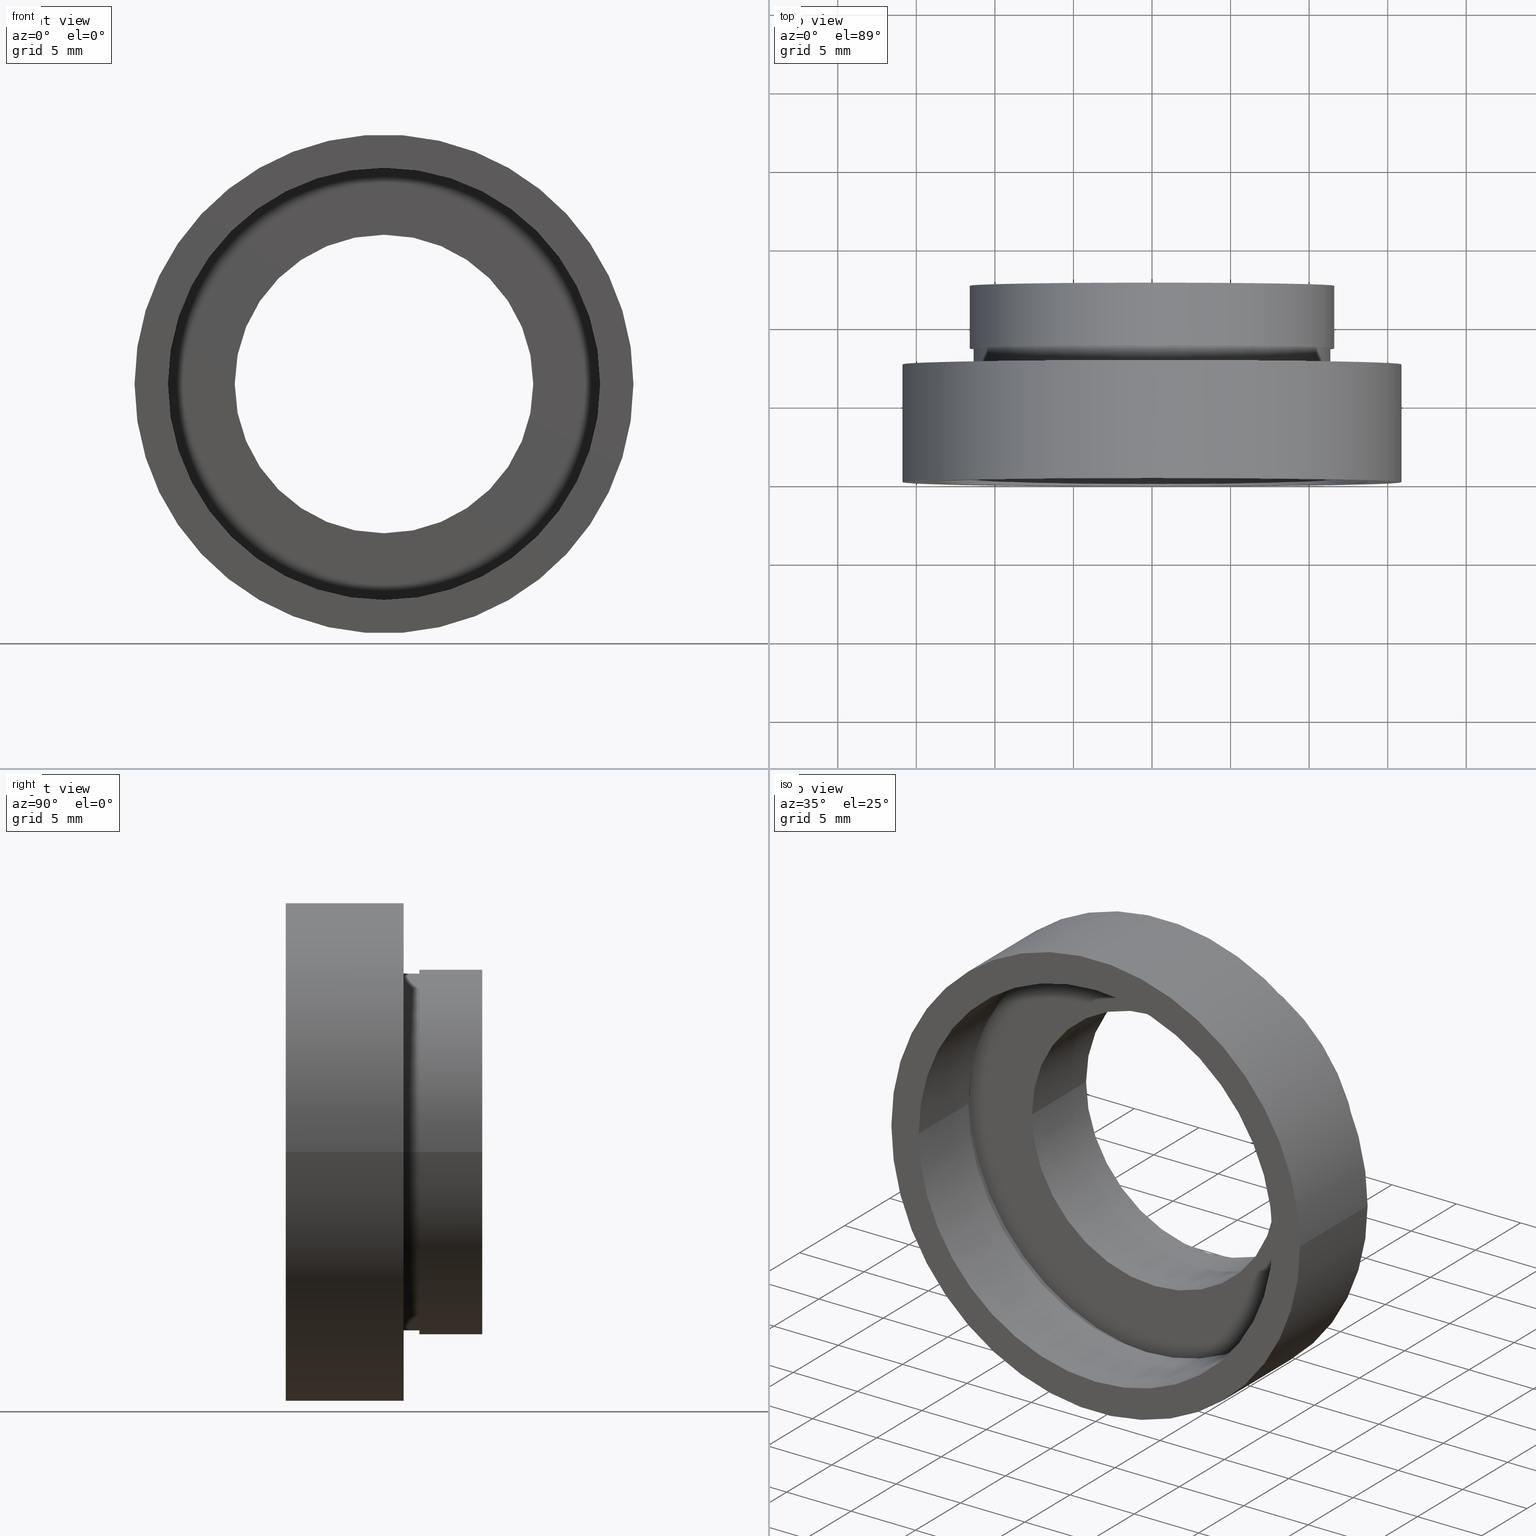
[diagram: canonical four-view strip — front | top / right | iso, engineering-drawing reading convention]
A machine part, canonical four-view strip (front | top / right | iso — engineering-drawing reading convention). The complete STEP part file that produces these views, byte-faithful:
ISO-10303-21;
HEADER;
FILE_DESCRIPTION (( 'STEP AP214' ),
    '1' );
FILE_NAME ('504070.STEP',
    '2019-10-08T06:19:54',
    ( 'user' ),
    ( '΢���й�' ),
    'SwSTEP 2.0',
    'SolidWorks 2016',
    '' );
FILE_SCHEMA (( 'AUTOMOTIVE_DESIGN' ));
ENDSEC;

DATA;
#1 = AXIS2_PLACEMENT_3D ( 'NONE', #520, #71, #206 ) ;
#2 = DIRECTION ( 'NONE',  ( -1.000000000000000000, -1.224646799147351000E-016, 0.0000000000000000000 ) ) ;
#3 = ORIENTED_EDGE ( 'NONE', *, *, #229, .T. ) ;
#4 = CARTESIAN_POINT ( 'NONE',  ( 11.60000000000000000, 8.500000000000000000, 1.420590287010929500E-015 ) ) ;
#5 =( NAMED_UNIT ( * ) PLANE_ANGLE_UNIT ( ) SI_UNIT ( $, .RADIAN. ) );
#6 = MECHANICAL_DESIGN_GEOMETRIC_PRESENTATION_REPRESENTATION (  '', ( #347 ), #112 ) ;
#7 = UNCERTAINTY_MEASURE_WITH_UNIT (LENGTH_MEASURE( 1.000000000000000100E-005 ), #18, 'distance_accuracy_value', 'NONE');
#8 = DIRECTION ( 'NONE',  ( 1.000000000000000000, 1.224646799147351000E-016, 0.0000000000000000000 ) ) ;
#9 =( NAMED_UNIT ( * ) PLANE_ANGLE_UNIT ( ) SI_UNIT ( $, .RADIAN. ) );
#10 = ORIENTED_EDGE ( 'NONE', *, *, #262, .F. ) ;
#11 = EDGE_CURVE ( 'NONE', #402, #564, #388, .T. ) ;
#12 = CARTESIAN_POINT ( 'NONE',  ( 14.35000000000000000, 5.499999999999998200, 1.757368156776451600E-015 ) ) ;
#13 = EDGE_LOOP ( 'NONE', ( #597, #489 ) ) ;
#14 = DIRECTION ( 'NONE',  ( -1.224646799147351000E-016, 1.000000000000000000, 0.0000000000000000000 ) ) ;
#15 = DIRECTION ( 'NONE',  ( -1.000000000000000000, -1.495451272393799300E-016, 0.0000000000000000000 ) ) ;
#16 =( NAMED_UNIT ( * ) SI_UNIT ( $, .STERADIAN. ) SOLID_ANGLE_UNIT ( ) );
#17 = ADVANCED_FACE ( 'NONE', ( #251, #146 ), #194, .F. ) ;
#18 =( LENGTH_UNIT ( ) NAMED_UNIT ( * ) SI_UNIT ( .MILLI., .METRE. ) );
#19 = EDGE_CURVE ( 'NONE', #556, #395, #282, .T. ) ;
#20 = ORIENTED_EDGE ( 'NONE', *, *, #74, .F. ) ;
#21 = DIRECTION ( 'NONE',  ( -1.224646799147351000E-016, 1.000000000000000000, -0.0000000000000000000 ) ) ;
#22 = VERTEX_POINT ( 'NONE', #382 ) ;
#23 = VECTOR ( 'NONE', #519, 1000.000000000000000 ) ;
#24 = AXIS2_PLACEMENT_3D ( 'NONE', #226, #452, #149 ) ;
#25 = DIRECTION ( 'NONE',  ( -1.000000000000000000, -1.224646799147351000E-016, 0.0000000000000000000 ) ) ;
#26 = DIRECTION ( 'NONE',  ( -1.224646799147351000E-016, 1.000000000000000000, -0.0000000000000000000 ) ) ;
#27 = DIRECTION ( 'NONE',  ( -1.224646799147351000E-016, 1.000000000000000000, -0.0000000000000000000 ) ) ;
#28 = PLANE ( 'NONE',  #287 ) ;
#29 = ORIENTED_EDGE ( 'NONE', *, *, #306, .F. ) ;
#30 = EDGE_LOOP ( 'NONE', ( #244, #55 ) ) ;
#31 = EDGE_LOOP ( 'NONE', ( #473, #64, #190, #536 ) ) ;
#32 = ADVANCED_FACE ( 'NONE', ( #364 ), #481, .T. ) ;
#33 = STYLED_ITEM ( 'NONE', ( #250 ), #357 ) ;
#34 = CARTESIAN_POINT ( 'NONE',  ( 0.0000000000000000000, 16.88601823708207700, 0.0000000000000000000 ) ) ;
#35 = CARTESIAN_POINT ( 'NONE',  ( 1.394385078907593200E-015, 5.499999999999996400, 0.0000000000000000000 ) ) ;
#36 = AXIS2_PLACEMENT_3D ( 'NONE', #211, #296, #222 ) ;
#37 = ADVANCED_FACE ( 'NONE', ( #344 ), #475, .F. ) ;
#38 = CARTESIAN_POINT ( 'NONE',  ( 1.149455719078122700E-015, 7.499999999999998200, 0.0000000000000000000 ) ) ;
#39 = CIRCLE ( 'NONE', #601, 11.59999999999999800 ) ;
#40 = ORIENTED_EDGE ( 'NONE', *, *, #326, .T. ) ;
#41 = CARTESIAN_POINT ( 'NONE',  ( 9.500000000000001800, 16.88601823708207700, 1.163414459189985700E-015 ) ) ;
#42 = SURFACE_STYLE_FILL_AREA ( #386 ) ;
#43 = ORIENTED_EDGE ( 'NONE', *, *, #553, .F. ) ;
#44 = CARTESIAN_POINT ( 'NONE',  ( 1.026991039163387700E-015, 8.499999999999998200, 0.0000000000000000000 ) ) ;
#45 = UNCERTAINTY_MEASURE_WITH_UNIT (LENGTH_MEASURE( 1.000000000000000100E-005 ), #263, 'distance_accuracy_value', 'NONE');
#46 = PRESENTATION_LAYER_ASSIGNMENT (  '', '', ( #209 ) ) ;
#47 = SURFACE_STYLE_FILL_AREA ( #66 ) ;
#48 = UNCERTAINTY_MEASURE_WITH_UNIT (LENGTH_MEASURE( 1.000000000000000100E-005 ), #588, 'distance_accuracy_value', 'NONE');
#49 = CARTESIAN_POINT ( 'NONE',  ( 0.0000000000000000000, 16.88601823708207700, 0.0000000000000000000 ) ) ;
#50 = DIRECTION ( 'NONE',  ( -1.224646799147351000E-016, 1.000000000000000000, -0.0000000000000000000 ) ) ;
#51 =( LENGTH_UNIT ( ) NAMED_UNIT ( * ) SI_UNIT ( .MILLI., .METRE. ) );
#52 = EDGE_CURVE ( 'NONE', #160, #458, #466, .T. ) ;
#53 = DIRECTION ( 'NONE',  ( -1.224646799147351000E-016, 1.000000000000000000, -0.0000000000000000000 ) ) ;
#54 = CIRCLE ( 'NONE', #578, 11.60000000000000000 ) ;
#55 = ORIENTED_EDGE ( 'NONE', *, *, #215, .F. ) ;
#56 = LINE ( 'NONE', #227, #179 ) ;
#57 = ORIENTED_EDGE ( 'NONE', *, *, #581, .T. ) ;
#58 = VERTEX_POINT ( 'NONE', #4 ) ;
#59 = ADVANCED_FACE ( 'NONE', ( #557 ), #543, .F. ) ;
#60 = DIRECTION ( 'NONE',  ( -1.224646799147351000E-016, 1.000000000000000000, -0.0000000000000000000 ) ) ;
#61 = EDGE_CURVE ( 'NONE', #178, #440, #56, .T. ) ;
#62 = DIRECTION ( 'NONE',  ( -1.000000000000000000, -1.092739197465705300E-016, 0.0000000000000000000 ) ) ;
#63 = DIRECTION ( 'NONE',  ( -1.224646799147351000E-016, 1.000000000000000000, -0.0000000000000000000 ) ) ;
#64 = ORIENTED_EDGE ( 'NONE', *, *, #522, .T. ) ;
#65 = EDGE_LOOP ( 'NONE', ( #549, #274, #90, #221 ) ) ;
#66 = FILL_AREA_STYLE ('',( #305 ) ) ;
#67 = CIRCLE ( 'NONE', #385, 15.87499999999999600 ) ;
#68 = SURFACE_SIDE_STYLE ('',( #275 ) ) ;
#69 = DIRECTION ( 'NONE',  ( -1.224646799147351000E-016, 1.000000000000000000, 0.0000000000000000000 ) ) ;
#70 = AXIS2_PLACEMENT_3D ( 'NONE', #38, #210, #106 ) ;
#71 = DIRECTION ( 'NONE',  ( -1.224646799147351000E-016, 1.000000000000000000, -0.0000000000000000000 ) ) ;
#72 = APPLICATION_PROTOCOL_DEFINITION ( 'draft international standard', 'automotive_design', 1998, #621 ) ;
#73 = EDGE_CURVE ( 'NONE', #343, #184, #191, .T. ) ;
#74 = EDGE_CURVE ( 'NONE', #623, #615, #67, .T. ) ;
#75 = PRESENTATION_STYLE_ASSIGNMENT (( #84 ) ) ;
#76 = ORIENTED_EDGE ( 'NONE', *, *, #609, .F. ) ;
#77 = PRESENTATION_STYLE_ASSIGNMENT (( #577 ) ) ;
#78 = LINE ( 'NONE', #133, #23 ) ;
#79 = CARTESIAN_POINT ( 'NONE',  ( 5.371323195044472300E-016, 12.49999999999999800, 0.0000000000000000000 ) ) ;
#80 = DIRECTION ( 'NONE',  ( -1.000000000000000000, -2.417733067563494800E-016, 0.0000000000000000000 ) ) ;
#81 = CARTESIAN_POINT ( 'NONE',  ( -15.87500000000000000, 16.88601823708207300, 0.0000000000000000000 ) ) ;
#82 = VECTOR ( 'NONE', #307, 1000.000000000000000 ) ;
#83 = EDGE_LOOP ( 'NONE', ( #507, #369 ) ) ;
#84 = SURFACE_STYLE_USAGE ( .BOTH. , #68 ) ;
#85 = CARTESIAN_POINT ( 'NONE',  ( 5.371323195044471300E-016, 12.50000000000000000, 0.0000000000000000000 ) ) ;
#86 = CIRCLE ( 'NONE', #95, 15.87499999999999600 ) ;
#87 = ORIENTED_EDGE ( 'NONE', *, *, #326, .F. ) ;
#88 = PRESENTATION_LAYER_ASSIGNMENT (  '', '', ( #33 ) ) ;
#89 = CIRCLE ( 'NONE', #488, 9.500000000000000000 ) ;
#90 = ORIENTED_EDGE ( 'NONE', *, *, #215, .T. ) ;
#91 = VECTOR ( 'NONE', #529, 1000.000000000000000 ) ;
#92 = CARTESIAN_POINT ( 'NONE',  ( -15.87500000000000000, 7.499999999999996400, 0.0000000000000000000 ) ) ;
#93 = CARTESIAN_POINT ( 'NONE',  ( 11.60000000000000000, 8.500000000000000000, 0.0000000000000000000 ) ) ;
#94 = EDGE_CURVE ( 'NONE', #351, #476, #78, .T. ) ;
#95 = AXIS2_PLACEMENT_3D ( 'NONE', #127, #614, #192 ) ;
#96 = CARTESIAN_POINT ( 'NONE',  ( -9.500000000000001800, 16.88601823708207700, 0.0000000000000000000 ) ) ;
#97 = ORIENTED_EDGE ( 'NONE', *, *, #183, .T. ) ;
#98 = CARTESIAN_POINT ( 'NONE',  ( 1.271920398992858000E-015, 6.499999999999997300, 0.0000000000000000000 ) ) ;
#99 = LINE ( 'NONE', #493, #91 ) ;
#100 = EDGE_LOOP ( 'NONE', ( #20, #415 ) ) ;
#101 = FACE_OUTER_BOUND ( 'NONE', #281, .T. ) ;
#102 = DIRECTION ( 'NONE',  ( -1.224646799147351000E-016, 1.000000000000000000, -0.0000000000000000000 ) ) ;
#103 = DIRECTION ( 'NONE',  ( -1.224646799147351000E-016, 1.000000000000000000, -0.0000000000000000000 ) ) ;
#104 = EDGE_CURVE ( 'NONE', #202, #201, #302, .T. ) ;
#105 = MANIFOLD_SOLID_BREP ( '��ת1', #487 ) ;
#106 = DIRECTION ( 'NONE',  ( -1.000000000000000000, -1.528390727732869900E-016, 0.0000000000000000000 ) ) ;
#107 = LINE ( 'NONE', #96, #82 ) ;
#108 = ORIENTED_EDGE ( 'NONE', *, *, #237, .T. ) ;
#109 = CIRCLE ( 'NONE', #498, 11.59999999999999800 ) ;
#110 = SURFACE_STYLE_FILL_AREA ( #339 ) ;
#111 = CARTESIAN_POINT ( 'NONE',  ( 9.500000000000001800, 12.50000000000000200, 1.163414459189985700E-015 ) ) ;
#112 =( GEOMETRIC_REPRESENTATION_CONTEXT ( 3 ) GLOBAL_UNCERTAINTY_ASSIGNED_CONTEXT ( ( #329 ) ) GLOBAL_UNIT_ASSIGNED_CONTEXT ( ( #611, #366, #437 ) ) REPRESENTATION_CONTEXT ( 'NONE', 'WORKASPACE' ) );
#113 = ADVANCED_BREP_SHAPE_REPRESENTATION ( '504070', ( #105, #293 ), #420 ) ;
#114 = DIRECTION ( 'NONE',  ( -1.000000000000000000, -1.261617073437677800E-016, 0.0000000000000000000 ) ) ;
#115 = LINE ( 'NONE', #501, #573 ) ;
#116 = ORIENTED_EDGE ( 'NONE', *, *, #609, .T. ) ;
#117 = ORIENTED_EDGE ( 'NONE', *, *, #142, .F. ) ;
#118 = COLOUR_RGB ( '',1.000000000000000000, 1.000000000000000000, 1.000000000000000000 ) ;
#119 = EDGE_CURVE ( 'NONE', #266, #595, #608, .T. ) ;
#120 = DIRECTION ( 'NONE',  ( -1.000000000000000000, -1.495451272393799300E-016, 0.0000000000000000000 ) ) ;
#121 = CARTESIAN_POINT ( 'NONE',  ( 0.0000000000000000000, 16.88601823708207700, 0.0000000000000000000 ) ) ;
#122 = FACE_BOUND ( 'NONE', #423, .T. ) ;
#123 = LINE ( 'NONE', #505, #240 ) ;
#124 = ADVANCED_FACE ( 'NONE', ( #526, #432 ), #28, .F. ) ;
#125 = CYLINDRICAL_SURFACE ( 'NONE', #464, 14.34999999999999800 ) ;
#126 = CARTESIAN_POINT ( 'NONE',  ( 1.026991039163387700E-015, 8.499999999999998200, 0.0000000000000000000 ) ) ;
#127 = CARTESIAN_POINT ( 'NONE',  ( 2.067940818438636500E-015, -3.469446951953614200E-015, 0.0000000000000000000 ) ) ;
#128 = EDGE_CURVE ( 'NONE', #22, #564, #417, .T. ) ;
#129 = FILL_AREA_STYLE ('',( #583 ) ) ;
#130 = ORIENTED_EDGE ( 'NONE', *, *, #559, .T. ) ;
#131 = COLOUR_RGB ( '',1.000000000000000000, 1.000000000000000000, 1.000000000000000000 ) ;
#132 = FACE_OUTER_BOUND ( 'NONE', #303, .T. ) ;
#133 = CARTESIAN_POINT ( 'NONE',  ( -11.60000000000000000, 16.88601823708207700, 0.0000000000000000000 ) ) ;
#134 = DIRECTION ( 'NONE',  ( -1.000000000000000000, -9.130123557772668300E-017, 0.0000000000000000000 ) ) ;
#135 = CARTESIAN_POINT ( 'NONE',  ( 13.75000000000000400, 5.499999999999998200, 1.683889348827611000E-015 ) ) ;
#136 = CYLINDRICAL_SURFACE ( 'NONE', #532, 15.87500000000000000 ) ;
#137 = EDGE_LOOP ( 'NONE', ( #161, #396, #457, #207 ) ) ;
#138 = SURFACE_STYLE_USAGE ( .BOTH. , #212 ) ;
#139 = ORIENTED_EDGE ( 'NONE', *, *, #19, .T. ) ;
#140 = FACE_BOUND ( 'NONE', #13, .T. ) ;
#141 = DIRECTION ( 'NONE',  ( -1.000000000000000000, -1.208866533781747400E-016, 0.0000000000000000000 ) ) ;
#142 = EDGE_CURVE ( 'NONE', #228, #153, #427, .T. ) ;
#143 = DIRECTION ( 'NONE',  ( -1.000000000000000000, -2.417733067563494800E-016, 0.0000000000000000000 ) ) ;
#144 = ORIENTED_EDGE ( 'NONE', *, *, #372, .T. ) ;
#145 = ORIENTED_EDGE ( 'NONE', *, *, #460, .F. ) ;
#146 = FACE_BOUND ( 'NONE', #304, .T. ) ;
#147 = FACE_OUTER_BOUND ( 'NONE', #267, .T. ) ;
#148 = CARTESIAN_POINT ( 'NONE',  ( 1.394385078907593200E-015, 5.499999999999996400, 0.0000000000000000000 ) ) ;
#149 = DIRECTION ( 'NONE',  ( -1.000000000000000000, -1.208866533781747400E-016, 0.0000000000000000000 ) ) ;
#150 = FACE_BOUND ( 'NONE', #534, .T. ) ;
#151 = ORIENTED_EDGE ( 'NONE', *, *, #11, .F. ) ;
#152 = PRODUCT_DEFINITION_CONTEXT ( 'detailed design', #621, 'design' ) ;
#153 = VERTEX_POINT ( 'NONE', #613 ) ;
#154 = LINE ( 'NONE', #454, #315 ) ;
#155 = DIRECTION ( 'NONE',  ( -1.224646799147351000E-016, 1.000000000000000000, -0.0000000000000000000 ) ) ;
#156 = DIRECTION ( 'NONE',  ( -1.000000000000000000, -1.208866533781747400E-016, 0.0000000000000000000 ) ) ;
#157 = EDGE_CURVE ( 'NONE', #202, #266, #401, .T. ) ;
#158 = ORIENTED_EDGE ( 'NONE', *, *, #581, .F. ) ;
#159 = VECTOR ( 'NONE', #279, 1000.000000000000000 ) ;
#160 = VERTEX_POINT ( 'NONE', #361 ) ;
#161 = ORIENTED_EDGE ( 'NONE', *, *, #61, .F. ) ;
#162 = CARTESIAN_POINT ( 'NONE',  ( -11.34999999999999800, 8.499999999999996400, 0.0000000000000000000 ) ) ;
#163 = CYLINDRICAL_SURFACE ( 'NONE', #617, 9.500000000000001800 ) ;
#164 = AXIS2_PLACEMENT_3D ( 'NONE', #370, #170, #143 ) ;
#165 =( LENGTH_UNIT ( ) NAMED_UNIT ( * ) SI_UNIT ( .MILLI., .METRE. ) );
#166 = DIRECTION ( 'NONE',  ( -1.000000000000000000, -1.224646799147351000E-016, 0.0000000000000000000 ) ) ;
#167 = VERTEX_POINT ( 'NONE', #312 ) ;
#168 = DIRECTION ( 'NONE',  ( -1.224646799147351000E-016, 1.000000000000000000, -0.0000000000000000000 ) ) ;
#169 = ADVANCED_FACE ( 'NONE', ( #101 ), #327, .F. ) ;
#170 = DIRECTION ( 'NONE',  ( -1.224646799147351000E-016, 1.000000000000000000, -0.0000000000000000000 ) ) ;
#171 = ADVANCED_FACE ( 'NONE', ( #389 ), #311, .T. ) ;
#172 =( NAMED_UNIT ( * ) SI_UNIT ( $, .STERADIAN. ) SOLID_ANGLE_UNIT ( ) );
#173 = MECHANICAL_DESIGN_GEOMETRIC_PRESENTATION_REPRESENTATION (  '', ( #373 ), #203 ) ;
#174 = PRODUCT ( '504070', '504070', '', ( #292 ) ) ;
#175 = CIRCLE ( 'NONE', #612, 13.75000000000000200 ) ;
#176 = CARTESIAN_POINT ( 'NONE',  ( 5.371323195044472300E-016, 12.49999999999999800, 0.0000000000000000000 ) ) ;
#177 = CIRCLE ( 'NONE', #447, 9.500000000000000000 ) ;
#178 = VERTEX_POINT ( 'NONE', #12 ) ;
#179 = VECTOR ( 'NONE', #358, 1000.000000000000000 ) ;
#180 = CIRCLE ( 'NONE', #494, 11.35000000000000000 ) ;
#181 = DIRECTION ( 'NONE',  ( 1.224646799147351000E-016, -1.000000000000000000, 0.0000000000000000000 ) ) ;
#182 = DIRECTION ( 'NONE',  ( -1.000000000000000000, -1.826024711554533400E-016, 0.0000000000000000000 ) ) ;
#183 = EDGE_CURVE ( 'NONE', #564, #22, #342, .T. ) ;
#184 = VERTEX_POINT ( 'NONE', #92 ) ;
#185 = FACE_OUTER_BOUND ( 'NONE', #200, .T. ) ;
#186 = CIRCLE ( 'NONE', #605, 14.34999999999999800 ) ;
#187 = DIRECTION ( 'NONE',  ( -1.224646799147351000E-016, 1.000000000000000000, -0.0000000000000000000 ) ) ;
#188 = FACE_BOUND ( 'NONE', #425, .T. ) ;
#189 = CARTESIAN_POINT ( 'NONE',  ( -14.34999999999999600, 5.499999999999994700, 0.0000000000000000000 ) ) ;
#190 = ORIENTED_EDGE ( 'NONE', *, *, #119, .F. ) ;
#191 = CIRCLE ( 'NONE', #591, 15.87500000000000000 ) ;
#192 = DIRECTION ( 'NONE',  ( -1.000000000000000000, -1.224646799147350700E-016, 0.0000000000000000000 ) ) ;
#193 = EDGE_CURVE ( 'NONE', #178, #228, #548, .T. ) ;
#194 = PLANE ( 'NONE',  #238 ) ;
#195 = LINE ( 'NONE', #504, #159 ) ;
#196 = PRESENTATION_STYLE_ASSIGNMENT (( #248 ) ) ;
#197 = CARTESIAN_POINT ( 'NONE',  ( 9.500000000000001800, 6.499999999999999100, 0.0000000000000000000 ) ) ;
#198 = DIRECTION ( 'NONE',  ( 0.0000000000000000000, 0.0000000000000000000, 1.000000000000000000 ) ) ;
#199 = COLOUR_RGB ( '',1.000000000000000000, 1.000000000000000000, 1.000000000000000000 ) ;
#200 = EDGE_LOOP ( 'NONE', ( #533, #424, #517, #76 ) ) ;
#201 = VERTEX_POINT ( 'NONE', #325 ) ;
#202 = VERTEX_POINT ( 'NONE', #261 ) ;
#203 =( GEOMETRIC_REPRESENTATION_CONTEXT ( 3 ) GLOBAL_UNCERTAINTY_ASSIGNED_CONTEXT ( ( #243 ) ) GLOBAL_UNIT_ASSIGNED_CONTEXT ( ( #537, #294, #509 ) ) REPRESENTATION_CONTEXT ( 'NONE', 'WORKASPACE' ) );
#204 = CARTESIAN_POINT ( 'NONE',  ( 2.067940818438636100E-015, 0.0000000000000000000, 0.0000000000000000000 ) ) ;
#205 = CARTESIAN_POINT ( 'NONE',  ( 1.394385078907593200E-015, 5.499999999999996400, 0.0000000000000000000 ) ) ;
#206 = DIRECTION ( 'NONE',  ( -1.000000000000000000, 0.0000000000000000000, 0.0000000000000000000 ) ) ;
#207 = ORIENTED_EDGE ( 'NONE', *, *, #477, .T. ) ;
#208 = SURFACE_STYLE_USAGE ( .BOTH. , #362 ) ;
#209 = STYLED_ITEM ( 'NONE', ( #518 ), #32 ) ;
#210 = DIRECTION ( 'NONE',  ( -1.224646799147351000E-016, 1.000000000000000000, -0.0000000000000000000 ) ) ;
#211 = CARTESIAN_POINT ( 'NONE',  ( 0.0000000000000000000, 16.88601823708207700, 0.0000000000000000000 ) ) ;
#212 = SURFACE_SIDE_STYLE ('',( #467 ) ) ;
#213 = CIRCLE ( 'NONE', #264, 13.75000000000000200 ) ;
#214 = SURFACE_SIDE_STYLE ('',( #576 ) ) ;
#215 = EDGE_CURVE ( 'NONE', #395, #556, #213, .T. ) ;
#216 = DIRECTION ( 'NONE',  ( -1.000000000000000000, -1.224646799147350700E-016, 0.0000000000000000000 ) ) ;
#217 = CARTESIAN_POINT ( 'NONE',  ( 0.0000000000000000000, 16.88601823708207700, 0.0000000000000000000 ) ) ;
#218 = MECHANICAL_DESIGN_GEOMETRIC_PRESENTATION_REPRESENTATION (  '', ( #246 ), #316 ) ;
#219 = CARTESIAN_POINT ( 'NONE',  ( -11.35000000000000000, 16.88601823708207700, 0.0000000000000000000 ) ) ;
#220 = DIRECTION ( 'NONE',  ( -1.224646799147351000E-016, 1.000000000000000000, -0.0000000000000000000 ) ) ;
#221 = ORIENTED_EDGE ( 'NONE', *, *, #409, .F. ) ;
#222 = DIRECTION ( 'NONE',  ( -1.000000000000000000, 0.0000000000000000000, 0.0000000000000000000 ) ) ;
#223 = EDGE_CURVE ( 'NONE', #228, #178, #335, .T. ) ;
#224 = ADVANCED_FACE ( 'NONE', ( #330 ), #253, .T. ) ;
#225 = CARTESIAN_POINT ( 'NONE',  ( 5.371323195044471300E-016, 12.50000000000000000, 0.0000000000000000000 ) ) ;
#226 = CARTESIAN_POINT ( 'NONE',  ( 1.394385078907593200E-015, 5.499999999999996400, 0.0000000000000000000 ) ) ;
#227 = CARTESIAN_POINT ( 'NONE',  ( 14.34999999999999800, 16.88601823708208000, 1.757368156776451600E-015 ) ) ;
#228 = VERTEX_POINT ( 'NONE', #189 ) ;
#229 = EDGE_CURVE ( 'NONE', #615, #623, #86, .T. ) ;
#230 = AXIS2_PLACEMENT_3D ( 'NONE', #148, #308, #114 ) ;
#231 = DIRECTION ( 'NONE',  ( 1.000000000000000000, 0.0000000000000000000, 0.0000000000000000000 ) ) ;
#232 = DIRECTION ( 'NONE',  ( 1.000000000000000000, 1.224646799147351000E-016, 0.0000000000000000000 ) ) ;
#233 = ADVANCED_FACE ( 'NONE', ( #283 ), #540, .F. ) ;
#234 = ORIENTED_EDGE ( 'NONE', *, *, #128, .F. ) ;
#235 = COLOUR_RGB ( '',1.000000000000000000, 1.000000000000000000, 1.000000000000000000 ) ;
#236 = DIRECTION ( 'NONE',  ( -1.000000000000000000, -2.185478394931410600E-016, 0.0000000000000000000 ) ) ;
#237 = EDGE_CURVE ( 'NONE', #351, #58, #39, .T. ) ;
#238 = AXIS2_PLACEMENT_3D ( 'NONE', #93, #69, #408 ) ;
#239 = CARTESIAN_POINT ( 'NONE',  ( -15.87499999999999300, -5.413573745600033100E-015, 0.0000000000000000000 ) ) ;
#240 = VECTOR ( 'NONE', #270, 1000.000000000000000 ) ;
#241 = EDGE_LOOP ( 'NONE', ( #365, #297 ) ) ;
#242 = VECTOR ( 'NONE', #624, 1000.000000000000000 ) ;
#243 = UNCERTAINTY_MEASURE_WITH_UNIT (LENGTH_MEASURE( 1.000000000000000100E-005 ), #537, 'distance_accuracy_value', 'NONE');
#244 = ORIENTED_EDGE ( 'NONE', *, *, #19, .F. ) ;
#245 = EDGE_LOOP ( 'NONE', ( #438, #116 ) ) ;
#246 = STYLED_ITEM ( 'NONE', ( #442 ), #37 ) ;
#247 = FACE_OUTER_BOUND ( 'NONE', #321, .T. ) ;
#248 = SURFACE_STYLE_USAGE ( .BOTH. , #579 ) ;
#249 = FILL_AREA_STYLE_COLOUR ( '', #336 ) ;
#250 = PRESENTATION_STYLE_ASSIGNMENT (( #461 ) ) ;
#251 = FACE_OUTER_BOUND ( 'NONE', #241, .T. ) ;
#252 = LINE ( 'NONE', #81, #242 ) ;
#253 = CYLINDRICAL_SURFACE ( 'NONE', #510, 11.35000000000000000 ) ;
#254 = FILL_AREA_STYLE ('',( #309 ) ) ;
#255 = DIRECTION ( 'NONE',  ( 1.224646799147351000E-016, -1.000000000000000000, 0.0000000000000000000 ) ) ;
#256 = AXIS2_PLACEMENT_3D ( 'NONE', #34, #286, #531 ) ;
#257 = FACE_OUTER_BOUND ( 'NONE', #100, .T. ) ;
#258 = PRODUCT_RELATED_PRODUCT_CATEGORY ( 'part', '', ( #174 ) ) ;
#259 = DIRECTION ( 'NONE',  ( -1.000000000000000000, -1.224646799147351000E-016, 0.0000000000000000000 ) ) ;
#260 = CARTESIAN_POINT ( 'NONE',  ( 13.75000000000000400, 5.499999999999998200, 0.0000000000000000000 ) ) ;
#261 = CARTESIAN_POINT ( 'NONE',  ( -11.34999999999999800, 7.499999999999996400, 0.0000000000000000000 ) ) ;
#262 = EDGE_CURVE ( 'NONE', #184, #343, #276, .T. ) ;
#263 =( LENGTH_UNIT ( ) NAMED_UNIT ( * ) SI_UNIT ( .MILLI., .METRE. ) );
#264 = AXIS2_PLACEMENT_3D ( 'NONE', #35, #448, #555 ) ;
#265 = DIRECTION ( 'NONE',  ( -1.224646799147351000E-016, 1.000000000000000000, -0.0000000000000000000 ) ) ;
#266 = VERTEX_POINT ( 'NONE', #162 ) ;
#267 = EDGE_LOOP ( 'NONE', ( #43, #3, #289, #622 ) ) ;
#268 =( LENGTH_UNIT ( ) NAMED_UNIT ( * ) SI_UNIT ( .MILLI., .METRE. ) );
#269 = COLOUR_RGB ( '',1.000000000000000000, 1.000000000000000000, 1.000000000000000000 ) ;
#270 = DIRECTION ( 'NONE',  ( -1.224646799147351000E-016, 1.000000000000000000, -0.0000000000000000000 ) ) ;
#271 = DIRECTION ( 'NONE',  ( -1.224646799147351000E-016, 1.000000000000000000, -0.0000000000000000000 ) ) ;
#272 = PRESENTATION_STYLE_ASSIGNMENT (( #138 ) ) ;
#273 = CIRCLE ( 'NONE', #70, 11.35000000000000000 ) ;
#274 = ORIENTED_EDGE ( 'NONE', *, *, #384, .T. ) ;
#275 = SURFACE_STYLE_FILL_AREA ( #129 ) ;
#276 = CIRCLE ( 'NONE', #568, 15.87500000000000000 ) ;
#277 = DIRECTION ( 'NONE',  ( -1.224646799147351000E-016, 1.000000000000000000, -0.0000000000000000000 ) ) ;
#278 = AXIS2_PLACEMENT_3D ( 'NONE', #85, #50, #616 ) ;
#279 = DIRECTION ( 'NONE',  ( -1.224646799147351000E-016, 1.000000000000000000, -0.0000000000000000000 ) ) ;
#280 = DIRECTION ( 'NONE',  ( -1.000000000000000000, -9.130123557772668300E-017, 0.0000000000000000000 ) ) ;
#281 = EDGE_LOOP ( 'NONE', ( #542, #371, #575, #139 ) ) ;
#282 = CIRCLE ( 'NONE', #230, 13.75000000000000200 ) ;
#283 = FACE_OUTER_BOUND ( 'NONE', #433, .T. ) ;
#284 = CARTESIAN_POINT ( 'NONE',  ( 0.0000000000000000000, 16.88601823708207700, 0.0000000000000000000 ) ) ;
#285 = PRODUCT_DEFINITION ( 'δ֪', '', #333, #152 ) ;
#286 = DIRECTION ( 'NONE',  ( -1.224646799147351000E-016, 1.000000000000000000, -0.0000000000000000000 ) ) ;
#287 = AXIS2_PLACEMENT_3D ( 'NONE', #260, #181, #8 ) ;
#288 = FACE_OUTER_BOUND ( 'NONE', #525, .T. ) ;
#289 = ORIENTED_EDGE ( 'NONE', *, *, #338, .T. ) ;
#290 = EDGE_LOOP ( 'NONE', ( #607, #331, #10, #482 ) ) ;
#291 = CARTESIAN_POINT ( 'NONE',  ( -11.59999999999999600, 8.499999999999996400, 0.0000000000000000000 ) ) ;
#292 = PRODUCT_CONTEXT ( 'NONE', #446, 'mechanical' ) ;
#293 = AXIS2_PLACEMENT_3D ( 'NONE', #398, #198, #231 ) ;
#294 =( NAMED_UNIT ( * ) PLANE_ANGLE_UNIT ( ) SI_UNIT ( $, .RADIAN. ) );
#295 = ADVANCED_FACE ( 'NONE', ( #257, #140 ), #478, .F. ) ;
#296 = DIRECTION ( 'NONE',  ( -1.224646799147351000E-016, 1.000000000000000000, -0.0000000000000000000 ) ) ;
#297 = ORIENTED_EDGE ( 'NONE', *, *, #546, .F. ) ;
#298 = MECHANICAL_DESIGN_GEOMETRIC_PRESENTATION_REPRESENTATION (  '', ( #571 ), #324 ) ;
#299 = DIRECTION ( 'NONE',  ( -1.000000000000000000, 0.0000000000000000000, 0.0000000000000000000 ) ) ;
#300 = FACE_OUTER_BOUND ( 'NONE', #378, .T. ) ;
#301 = DIRECTION ( 'NONE',  ( -1.224646799147351000E-016, 1.000000000000000000, -0.0000000000000000000 ) ) ;
#302 = CIRCLE ( 'NONE', #491, 11.35000000000000000 ) ;
#303 = EDGE_LOOP ( 'NONE', ( #387, #404 ) ) ;
#304 = EDGE_LOOP ( 'NONE', ( #354, #516 ) ) ;
#305 = FILL_AREA_STYLE_COLOUR ( '', #269 ) ;
#306 = EDGE_CURVE ( 'NONE', #402, #167, #177, .T. ) ;
#307 = DIRECTION ( 'NONE',  ( -1.224646799147351000E-016, 1.000000000000000000, -0.0000000000000000000 ) ) ;
#308 = DIRECTION ( 'NONE',  ( -1.224646799147351000E-016, 1.000000000000000000, -0.0000000000000000000 ) ) ;
#309 = FILL_AREA_STYLE_COLOUR ( '', #319 ) ;
#310 = DIRECTION ( 'NONE',  ( -1.000000000000000000, -1.528390727732869900E-016, 0.0000000000000000000 ) ) ;
#311 = CYLINDRICAL_SURFACE ( 'NONE', #435, 15.87500000000000000 ) ;
#312 = CARTESIAN_POINT ( 'NONE',  ( -9.499999999999998200, 6.499999999999996400, 0.0000000000000000000 ) ) ;
#313 = CARTESIAN_POINT ( 'NONE',  ( -14.34999999999999800, 16.88601823708207300, 0.0000000000000000000 ) ) ;
#314 = DIRECTION ( 'NONE',  ( -1.224646799147351000E-016, 1.000000000000000000, -0.0000000000000000000 ) ) ;
#315 = VECTOR ( 'NONE', #265, 1000.000000000000000 ) ;
#316 =( GEOMETRIC_REPRESENTATION_CONTEXT ( 3 ) GLOBAL_UNCERTAINTY_ASSIGNED_CONTEXT ( ( #45 ) ) GLOBAL_UNIT_ASSIGNED_CONTEXT ( ( #263, #593, #572 ) ) REPRESENTATION_CONTEXT ( 'NONE', 'WORKASPACE' ) );
#317 = DIRECTION ( 'NONE',  ( -1.224646799147351000E-016, 1.000000000000000000, -0.0000000000000000000 ) ) ;
#318 =( GEOMETRIC_REPRESENTATION_CONTEXT ( 3 ) GLOBAL_UNCERTAINTY_ASSIGNED_CONTEXT ( ( #544 ) ) GLOBAL_UNIT_ASSIGNED_CONTEXT ( ( #499, #566, #484 ) ) REPRESENTATION_CONTEXT ( 'NONE', 'WORKASPACE' ) );
#319 = COLOUR_RGB ( '',1.000000000000000000, 1.000000000000000000, 1.000000000000000000 ) ;
#320 = EDGE_LOOP ( 'NONE', ( #380, #363 ) ) ;
#321 = EDGE_LOOP ( 'NONE', ( #29, #502, #97, #574 ) ) ;
#322 = FILL_AREA_STYLE_COLOUR ( '', #118 ) ;
#323 = EDGE_CURVE ( 'NONE', #458, #160, #175, .T. ) ;
#324 =( GEOMETRIC_REPRESENTATION_CONTEXT ( 3 ) GLOBAL_UNCERTAINTY_ASSIGNED_CONTEXT ( ( #7 ) ) GLOBAL_UNIT_ASSIGNED_CONTEXT ( ( #18, #524, #428 ) ) REPRESENTATION_CONTEXT ( 'NONE', 'WORKASPACE' ) );
#325 = CARTESIAN_POINT ( 'NONE',  ( 11.35000000000000100, 7.500000000000000000, 1.389974117032245900E-015 ) ) ;
#326 = EDGE_CURVE ( 'NONE', #201, #202, #273, .T. ) ;
#327 = CYLINDRICAL_SURFACE ( 'NONE', #471, 13.75000000000000200 ) ;
#328 = ORIENTED_EDGE ( 'NONE', *, *, #157, .T. ) ;
#329 = UNCERTAINTY_MEASURE_WITH_UNIT (LENGTH_MEASURE( 1.000000000000000100E-005 ), #611, 'distance_accuracy_value', 'NONE');
#330 = FACE_OUTER_BOUND ( 'NONE', #31, .T. ) ;
#331 = ORIENTED_EDGE ( 'NONE', *, *, #553, .T. ) ;
#332 = PRESENTATION_STYLE_ASSIGNMENT (( #348 ) ) ;
#333 = PRODUCT_DEFINITION_FORMATION_WITH_SPECIFIED_SOURCE ( '�κ�', '', #174, .NOT_KNOWN. ) ;
#334 = PRESENTATION_LAYER_ASSIGNMENT (  '', '', ( #373 ) ) ;
#335 = CIRCLE ( 'NONE', #24, 14.34999999999999800 ) ;
#336 = COLOUR_RGB ( '',1.000000000000000000, 1.000000000000000000, 1.000000000000000000 ) ;
#337 = CARTESIAN_POINT ( 'NONE',  ( 0.0000000000000000000, 16.88601823708207700, 0.0000000000000000000 ) ) ;
#338 = EDGE_CURVE ( 'NONE', #623, #184, #252, .T. ) ;
#339 = FILL_AREA_STYLE ('',( #453 ) ) ;
#340 = DIRECTION ( 'NONE',  ( -1.224646799147351000E-016, 1.000000000000000000, -0.0000000000000000000 ) ) ;
#341 = PRESENTATION_LAYER_ASSIGNMENT (  '', '', ( #353 ) ) ;
#342 = CIRCLE ( 'NONE', #619, 9.500000000000001800 ) ;
#343 = VERTEX_POINT ( 'NONE', #562 ) ;
#344 = FACE_OUTER_BOUND ( 'NONE', #65, .T. ) ;
#345 = ORIENTED_EDGE ( 'NONE', *, *, #306, .T. ) ;
#346 = SURFACE_STYLE_USAGE ( .BOTH. , #486 ) ;
#347 = STYLED_ITEM ( 'NONE', ( #272 ), #169 ) ;
#348 = SURFACE_STYLE_USAGE ( .BOTH. , #214 ) ;
#349 = DIRECTION ( 'NONE',  ( -1.224646799147351000E-016, 1.000000000000000000, -0.0000000000000000000 ) ) ;
#350 = APPLICATION_PROTOCOL_DEFINITION ( 'draft international standard', 'automotive_design', 1998, #446 ) ;
#351 = VERTEX_POINT ( 'NONE', #291 ) ;
#352 = CARTESIAN_POINT ( 'NONE',  ( 1.149455719078122700E-015, 7.499999999999998200, 0.0000000000000000000 ) ) ;
#353 = STYLED_ITEM ( 'NONE', ( #332 ), #113 ) ;
#354 = ORIENTED_EDGE ( 'NONE', *, *, #119, .T. ) ;
#355 = CARTESIAN_POINT ( 'NONE',  ( 9.500000000000001800, 12.50000000000000000, 0.0000000000000000000 ) ) ;
#356 = CARTESIAN_POINT ( 'NONE',  ( 11.35000000000000100, 7.500000000000000000, 0.0000000000000000000 ) ) ;
#357 = ADVANCED_FACE ( 'NONE', ( #247 ), #163, .F. ) ;
#358 = DIRECTION ( 'NONE',  ( -1.224646799147351000E-016, 1.000000000000000000, -0.0000000000000000000 ) ) ;
#359 = PRESENTATION_LAYER_ASSIGNMENT (  '', '', ( #571 ) ) ;
#360 = DIRECTION ( 'NONE',  ( -1.224646799147351000E-016, 1.000000000000000000, -0.0000000000000000000 ) ) ;
#361 = CARTESIAN_POINT ( 'NONE',  ( 13.75000000000000400, 1.683889348827607900E-015, 1.683889348827611000E-015 ) ) ;
#362 = SURFACE_SIDE_STYLE ('',( #47 ) ) ;
#363 = ORIENTED_EDGE ( 'NONE', *, *, #193, .T. ) ;
#364 = FACE_OUTER_BOUND ( 'NONE', #405, .T. ) ;
#365 = ORIENTED_EDGE ( 'NONE', *, *, #237, .F. ) ;
#366 =( NAMED_UNIT ( * ) PLANE_ANGLE_UNIT ( ) SI_UNIT ( $, .RADIAN. ) );
#367 = AXIS2_PLACEMENT_3D ( 'NONE', #337, #463, #375 ) ;
#368 = DIRECTION ( 'NONE',  ( -1.224646799147351000E-016, 1.000000000000000000, -0.0000000000000000000 ) ) ;
#369 = ORIENTED_EDGE ( 'NONE', *, *, #73, .T. ) ;
#370 = CARTESIAN_POINT ( 'NONE',  ( 0.0000000000000000000, 16.88601823708207700, 0.0000000000000000000 ) ) ;
#371 = ORIENTED_EDGE ( 'NONE', *, *, #323, .F. ) ;
#372 = EDGE_CURVE ( 'NONE', #440, #153, #186, .T. ) ;
#373 = STYLED_ITEM ( 'NONE', ( #75 ), #105 ) ;
#374 = DIRECTION ( 'NONE',  ( -1.224646799147351000E-016, 1.000000000000000000, -0.0000000000000000000 ) ) ;
#375 = DIRECTION ( 'NONE',  ( -1.000000000000000000, 0.0000000000000000000, 0.0000000000000000000 ) ) ;
#376 = EDGE_CURVE ( 'NONE', #595, #266, #180, .T. ) ;
#377 = ORIENTED_EDGE ( 'NONE', *, *, #558, .T. ) ;
#378 = EDGE_LOOP ( 'NONE', ( #587, #394, #144, #117 ) ) ;
#379 = DIRECTION ( 'NONE',  ( -1.000000000000000000, -2.185478394931410600E-016, 0.0000000000000000000 ) ) ;
#380 = ORIENTED_EDGE ( 'NONE', *, *, #223, .T. ) ;
#381 = AXIS2_PLACEMENT_3D ( 'NONE', #563, #349, #512 ) ;
#382 = CARTESIAN_POINT ( 'NONE',  ( -9.500000000000001800, 12.49999999999999800, 0.0000000000000000000 ) ) ;
#383 = FILL_AREA_STYLE ('',( #249 ) ) ;
#384 = EDGE_CURVE ( 'NONE', #160, #395, #195, .T. ) ;
#385 = AXIS2_PLACEMENT_3D ( 'NONE', #421, #271, #216 ) ;
#386 = FILL_AREA_STYLE ('',( #436 ) ) ;
#387 = ORIENTED_EDGE ( 'NONE', *, *, #477, .F. ) ;
#388 = LINE ( 'NONE', #41, #551 ) ;
#389 = FACE_OUTER_BOUND ( 'NONE', #290, .T. ) ;
#390 = CARTESIAN_POINT ( 'NONE',  ( 1.149455719078122700E-015, 7.499999999999998200, 0.0000000000000000000 ) ) ;
#391 = MECHANICAL_DESIGN_GEOMETRIC_PRESENTATION_REPRESENTATION (  '', ( #353 ), #318 ) ;
#392 = PRODUCT_DEFINITION_SHAPE ( 'NONE', 'NONE',  #285 ) ;
#393 = AXIS2_PLACEMENT_3D ( 'NONE', #176, #584, #15 ) ;
#394 = ORIENTED_EDGE ( 'NONE', *, *, #61, .T. ) ;
#395 = VERTEX_POINT ( 'NONE', #135 ) ;
#396 = ORIENTED_EDGE ( 'NONE', *, *, #223, .F. ) ;
#397 = CARTESIAN_POINT ( 'NONE',  ( 1.149455719078122700E-015, 7.499999999999998200, 0.0000000000000000000 ) ) ;
#398 = CARTESIAN_POINT ( 'NONE',  ( 0.0000000000000000000, 0.0000000000000000000, 0.0000000000000000000 ) ) ;
#399 =( NAMED_UNIT ( * ) PLANE_ANGLE_UNIT ( ) SI_UNIT ( $, .RADIAN. ) );
#400 =( GEOMETRIC_REPRESENTATION_CONTEXT ( 3 ) GLOBAL_UNCERTAINTY_ASSIGNED_CONTEXT ( ( #48 ) ) GLOBAL_UNIT_ASSIGNED_CONTEXT ( ( #588, #9, #16 ) ) REPRESENTATION_CONTEXT ( 'NONE', 'WORKASPACE' ) );
#401 = LINE ( 'NONE', #219, #403 ) ;
#402 = VERTEX_POINT ( 'NONE', #479 ) ;
#403 = VECTOR ( 'NONE', #429, 1000.000000000000000 ) ;
#404 = ORIENTED_EDGE ( 'NONE', *, *, #372, .F. ) ;
#405 = EDGE_LOOP ( 'NONE', ( #108, #377, #145, #589 ) ) ;
#406 = VECTOR ( 'NONE', #102, 1000.000000000000000 ) ;
#407 = FILL_AREA_STYLE_COLOUR ( '', #459 ) ;
#408 = DIRECTION ( 'NONE',  ( -1.000000000000000000, -1.224646799147351000E-016, 0.0000000000000000000 ) ) ;
#409 = EDGE_CURVE ( 'NONE', #458, #556, #154, .T. ) ;
#410 = SURFACE_SIDE_STYLE ('',( #439 ) ) ;
#411 = AXIS2_PLACEMENT_3D ( 'NONE', #465, #14, #166 ) ;
#412 = CARTESIAN_POINT ( 'NONE',  ( 14.35000000000000000, 6.499999999999999100, 1.757368156776451600E-015 ) ) ;
#413 = UNCERTAINTY_MEASURE_WITH_UNIT (LENGTH_MEASURE( 1.000000000000000100E-005 ), #268, 'distance_accuracy_value', 'NONE');
#414 = ADVANCED_FACE ( 'NONE', ( #150, #538 ), #585, .F. ) ;
#415 = ORIENTED_EDGE ( 'NONE', *, *, #229, .F. ) ;
#416 = DIRECTION ( 'NONE',  ( -1.000000000000000000, -1.208866533781747400E-016, 0.0000000000000000000 ) ) ;
#417 = CIRCLE ( 'NONE', #278, 9.500000000000001800 ) ;
#418 = CARTESIAN_POINT ( 'NONE',  ( 11.60000000000000000, 12.50000000000000000, 1.420590287010929500E-015 ) ) ;
#419 = ADVANCED_FACE ( 'NONE', ( #147 ), #136, .T. ) ;
#420 =( GEOMETRIC_REPRESENTATION_CONTEXT ( 3 ) GLOBAL_UNCERTAINTY_ASSIGNED_CONTEXT ( ( #470 ) ) GLOBAL_UNIT_ASSIGNED_CONTEXT ( ( #51, #5, #527 ) ) REPRESENTATION_CONTEXT ( 'NONE', 'WORKASPACE' ) );
#421 = CARTESIAN_POINT ( 'NONE',  ( 2.067940818438636500E-015, -3.469446951953614200E-015, 0.0000000000000000000 ) ) ;
#422 = CYLINDRICAL_SURFACE ( 'NONE', #381, 11.60000000000000000 ) ;
#423 = EDGE_LOOP ( 'NONE', ( #57, #345 ) ) ;
#424 = ORIENTED_EDGE ( 'NONE', *, *, #546, .T. ) ;
#425 = EDGE_LOOP ( 'NONE', ( #234, #480 ) ) ;
#426 = AXIS2_PLACEMENT_3D ( 'NONE', #204, #317, #2 ) ;
#427 = LINE ( 'NONE', #313, #406 ) ;
#428 =( NAMED_UNIT ( * ) SI_UNIT ( $, .STERADIAN. ) SOLID_ANGLE_UNIT ( ) );
#429 = DIRECTION ( 'NONE',  ( -1.224646799147351000E-016, 1.000000000000000000, -0.0000000000000000000 ) ) ;
#430 = PRESENTATION_LAYER_ASSIGNMENT (  '', '', ( #434 ) ) ;
#431 = CARTESIAN_POINT ( 'NONE',  ( -11.60000000000000000, 12.49999999999999600, 0.0000000000000000000 ) ) ;
#432 = FACE_OUTER_BOUND ( 'NONE', #320, .T. ) ;
#433 = EDGE_LOOP ( 'NONE', ( #151, #158, #130, #541 ) ) ;
#434 = STYLED_ITEM ( 'NONE', ( #77 ), #592 ) ;
#435 = AXIS2_PLACEMENT_3D ( 'NONE', #445, #277, #236 ) ;
#436 = FILL_AREA_STYLE_COLOUR ( '', #235 ) ;
#437 =( NAMED_UNIT ( * ) SI_UNIT ( $, .STERADIAN. ) SOLID_ANGLE_UNIT ( ) );
#438 = ORIENTED_EDGE ( 'NONE', *, *, #460, .T. ) ;
#439 = SURFACE_STYLE_FILL_AREA ( #618 ) ;
#440 = VERTEX_POINT ( 'NONE', #412 ) ;
#441 = CARTESIAN_POINT ( 'NONE',  ( -13.75000000000000000, 5.499999999999994700, 0.0000000000000000000 ) ) ;
#442 = PRESENTATION_STYLE_ASSIGNMENT (( #346 ) ) ;
#443 = MECHANICAL_DESIGN_GEOMETRIC_PRESENTATION_REPRESENTATION (  '', ( #434 ), #400 ) ;
#444 = ADVANCED_FACE ( 'NONE', ( #188, #456 ), #497, .F. ) ;
#445 = CARTESIAN_POINT ( 'NONE',  ( 0.0000000000000000000, 16.88601823708207700, 0.0000000000000000000 ) ) ;
#446 = APPLICATION_CONTEXT ( 'automotive_design' ) ;
#447 = AXIS2_PLACEMENT_3D ( 'NONE', #513, #103, #134 ) ;
#448 = DIRECTION ( 'NONE',  ( -1.224646799147351000E-016, 1.000000000000000000, -0.0000000000000000000 ) ) ;
#449 = VERTEX_POINT ( 'NONE', #418 ) ;
#450 = ORIENTED_EDGE ( 'NONE', *, *, #522, .F. ) ;
#451 = DIRECTION ( 'NONE',  ( -1.000000000000000000, -1.495451272393799500E-016, 0.0000000000000000000 ) ) ;
#452 = DIRECTION ( 'NONE',  ( -1.224646799147351000E-016, 1.000000000000000000, -0.0000000000000000000 ) ) ;
#453 = FILL_AREA_STYLE_COLOUR ( '', #131 ) ;
#454 = CARTESIAN_POINT ( 'NONE',  ( -13.75000000000000200, 16.88601823708207700, 0.0000000000000000000 ) ) ;
#455 = AXIS2_PLACEMENT_3D ( 'NONE', #197, #550, #259 ) ;
#456 = FACE_OUTER_BOUND ( 'NONE', #245, .T. ) ;
#457 = ORIENTED_EDGE ( 'NONE', *, *, #142, .T. ) ;
#458 = VERTEX_POINT ( 'NONE', #485 ) ;
#459 = COLOUR_RGB ( '',1.000000000000000000, 1.000000000000000000, 1.000000000000000000 ) ;
#460 = EDGE_CURVE ( 'NONE', #476, #449, #54, .T. ) ;
#461 = SURFACE_STYLE_USAGE ( .BOTH. , #560 ) ;
#462 = AXIS2_PLACEMENT_3D ( 'NONE', #561, #368, #310 ) ;
#463 = DIRECTION ( 'NONE',  ( -1.224646799147351000E-016, 1.000000000000000000, -0.0000000000000000000 ) ) ;
#464 = AXIS2_PLACEMENT_3D ( 'NONE', #121, #26, #80 ) ;
#465 = CARTESIAN_POINT ( 'NONE',  ( 15.87500000000000000, -3.035621465847962700E-016, 0.0000000000000000000 ) ) ;
#466 = CIRCLE ( 'NONE', #426, 13.75000000000000200 ) ;
#467 = SURFACE_STYLE_FILL_AREA ( #383 ) ;
#468 = DIRECTION ( 'NONE',  ( -1.224646799147351000E-016, 1.000000000000000000, -0.0000000000000000000 ) ) ;
#469 = MECHANICAL_DESIGN_GEOMETRIC_PRESENTATION_REPRESENTATION (  '', ( #33 ), #567 ) ;
#470 = UNCERTAINTY_MEASURE_WITH_UNIT (LENGTH_MEASURE( 1.000000000000000100E-005 ), #51, 'distance_accuracy_value', 'NONE');
#471 = AXIS2_PLACEMENT_3D ( 'NONE', #217, #187, #530 ) ;
#472 = CARTESIAN_POINT ( 'NONE',  ( 15.87500000000000000, -1.525320158307194900E-015, 1.944126793646423200E-015 ) ) ;
#473 = ORIENTED_EDGE ( 'NONE', *, *, #104, .T. ) ;
#474 =( NAMED_UNIT ( * ) SI_UNIT ( $, .STERADIAN. ) SOLID_ANGLE_UNIT ( ) );
#475 = CYLINDRICAL_SURFACE ( 'NONE', #36, 13.75000000000000200 ) ;
#476 = VERTEX_POINT ( 'NONE', #431 ) ;
#477 = EDGE_CURVE ( 'NONE', #153, #440, #586, .T. ) ;
#478 = PLANE ( 'NONE',  #411 ) ;
#479 = CARTESIAN_POINT ( 'NONE',  ( 9.500000000000001800, 6.499999999999998200, 1.163414459189985700E-015 ) ) ;
#480 = ORIENTED_EDGE ( 'NONE', *, *, #183, .F. ) ;
#481 = CYLINDRICAL_SURFACE ( 'NONE', #256, 11.60000000000000000 ) ;
#482 = ORIENTED_EDGE ( 'NONE', *, *, #338, .F. ) ;
#483 = MECHANICAL_DESIGN_GEOMETRIC_PRESENTATION_REPRESENTATION (  '', ( #209 ), #523 ) ;
#484 =( NAMED_UNIT ( * ) SI_UNIT ( $, .STERADIAN. ) SOLID_ANGLE_UNIT ( ) );
#485 = CARTESIAN_POINT ( 'NONE',  ( -13.75000000000000000, -1.683889348827607900E-015, 0.0000000000000000000 ) ) ;
#486 = SURFACE_SIDE_STYLE ('',( #110 ) ) ;
#487 = CLOSED_SHELL ( 'NONE', ( #171, #224, #32, #357, #514, #37, #295, #169, #124, #59, #535, #233, #444, #592, #17, #606, #414, #419 ) ) ;
#488 = AXIS2_PLACEMENT_3D ( 'NONE', #98, #468, #280 ) ;
#489 = ORIENTED_EDGE ( 'NONE', *, *, #52, .T. ) ;
#490 = PLANE ( 'NONE',  #455 ) ;
#491 = AXIS2_PLACEMENT_3D ( 'NONE', #390, #60, #594 ) ;
#492 = DIRECTION ( 'NONE',  ( -1.224646799147351000E-016, 1.000000000000000000, -0.0000000000000000000 ) ) ;
#493 = CARTESIAN_POINT ( 'NONE',  ( 15.87500000000000000, 16.88601823708208000, 1.944126793646423200E-015 ) ) ;
#494 = AXIS2_PLACEMENT_3D ( 'NONE', #44, #374, #545 ) ;
#495 = DIRECTION ( 'NONE',  ( -1.000000000000000000, 0.0000000000000000000, 0.0000000000000000000 ) ) ;
#496 = FILL_AREA_STYLE ('',( #407 ) ) ;
#497 = PLANE ( 'NONE',  #554 ) ;
#498 = AXIS2_PLACEMENT_3D ( 'NONE', #565, #220, #511 ) ;
#499 =( LENGTH_UNIT ( ) NAMED_UNIT ( * ) SI_UNIT ( .MILLI., .METRE. ) );
#500 = AXIS2_PLACEMENT_3D ( 'NONE', #205, #301, #416 ) ;
#501 = CARTESIAN_POINT ( 'NONE',  ( 11.60000000000000000, 16.88601823708207700, 1.420590287010929500E-015 ) ) ;
#502 = ORIENTED_EDGE ( 'NONE', *, *, #11, .T. ) ;
#503 = DIRECTION ( 'NONE',  ( -1.224646799147351000E-016, 1.000000000000000000, -0.0000000000000000000 ) ) ;
#504 = CARTESIAN_POINT ( 'NONE',  ( 13.75000000000000200, 16.88601823708207700, 1.683889348827611000E-015 ) ) ;
#505 = CARTESIAN_POINT ( 'NONE',  ( 11.35000000000000000, 16.88601823708207700, 1.389974117032245900E-015 ) ) ;
#506 = AXIS2_PLACEMENT_3D ( 'NONE', #521, #503, #156 ) ;
#507 = ORIENTED_EDGE ( 'NONE', *, *, #262, .T. ) ;
#508 = ORIENTED_EDGE ( 'NONE', *, *, #104, .F. ) ;
#509 =( NAMED_UNIT ( * ) SI_UNIT ( $, .STERADIAN. ) SOLID_ANGLE_UNIT ( ) );
#510 = AXIS2_PLACEMENT_3D ( 'NONE', #284, #570, #299 ) ;
#511 = DIRECTION ( 'NONE',  ( -1.000000000000000000, -1.495451272393799500E-016, 0.0000000000000000000 ) ) ;
#512 = DIRECTION ( 'NONE',  ( -1.000000000000000000, 0.0000000000000000000, 0.0000000000000000000 ) ) ;
#513 = CARTESIAN_POINT ( 'NONE',  ( 1.271920398992858000E-015, 6.499999999999997300, 0.0000000000000000000 ) ) ;
#514 = ADVANCED_FACE ( 'NONE', ( #300 ), #125, .F. ) ;
#515 = CARTESIAN_POINT ( 'NONE',  ( 1.271920398992858000E-015, 6.499999999999997300, 0.0000000000000000000 ) ) ;
#516 = ORIENTED_EDGE ( 'NONE', *, *, #376, .T. ) ;
#517 = ORIENTED_EDGE ( 'NONE', *, *, #94, .T. ) ;
#518 = PRESENTATION_STYLE_ASSIGNMENT (( #208 ) ) ;
#519 = DIRECTION ( 'NONE',  ( -1.224646799147351000E-016, 1.000000000000000000, -0.0000000000000000000 ) ) ;
#520 = CARTESIAN_POINT ( 'NONE',  ( 0.0000000000000000000, 16.88601823708207700, 0.0000000000000000000 ) ) ;
#521 = CARTESIAN_POINT ( 'NONE',  ( 1.271920398992858000E-015, 6.499999999999997300, 0.0000000000000000000 ) ) ;
#522 = EDGE_CURVE ( 'NONE', #201, #595, #123, .T. ) ;
#523 =( GEOMETRIC_REPRESENTATION_CONTEXT ( 3 ) GLOBAL_UNCERTAINTY_ASSIGNED_CONTEXT ( ( #528 ) ) GLOBAL_UNIT_ASSIGNED_CONTEXT ( ( #165, #399, #474 ) ) REPRESENTATION_CONTEXT ( 'NONE', 'WORKASPACE' ) );
#524 =( NAMED_UNIT ( * ) PLANE_ANGLE_UNIT ( ) SI_UNIT ( $, .RADIAN. ) );
#525 = EDGE_LOOP ( 'NONE', ( #450, #40, #328, #603 ) ) ;
#526 = FACE_BOUND ( 'NONE', #30, .T. ) ;
#527 =( NAMED_UNIT ( * ) SI_UNIT ( $, .STERADIAN. ) SOLID_ANGLE_UNIT ( ) );
#528 = UNCERTAINTY_MEASURE_WITH_UNIT (LENGTH_MEASURE( 1.000000000000000100E-005 ), #165, 'distance_accuracy_value', 'NONE');
#529 = DIRECTION ( 'NONE',  ( -1.224646799147351000E-016, 1.000000000000000000, -0.0000000000000000000 ) ) ;
#530 = DIRECTION ( 'NONE',  ( -1.000000000000000000, 0.0000000000000000000, 0.0000000000000000000 ) ) ;
#531 = DIRECTION ( 'NONE',  ( -1.000000000000000000, 0.0000000000000000000, 0.0000000000000000000 ) ) ;
#532 = AXIS2_PLACEMENT_3D ( 'NONE', #49, #63, #379 ) ;
#533 = ORIENTED_EDGE ( 'NONE', *, *, #558, .F. ) ;
#534 = EDGE_LOOP ( 'NONE', ( #508, #87 ) ) ;
#535 = ADVANCED_FACE ( 'NONE', ( #132, #122 ), #490, .F. ) ;
#536 = ORIENTED_EDGE ( 'NONE', *, *, #157, .F. ) ;
#537 =( LENGTH_UNIT ( ) NAMED_UNIT ( * ) SI_UNIT ( .MILLI., .METRE. ) );
#538 = FACE_OUTER_BOUND ( 'NONE', #83, .T. ) ;
#539 = CARTESIAN_POINT ( 'NONE',  ( 11.35000000000000100, 8.500000000000000000, 1.389974117032245900E-015 ) ) ;
#540 = CYLINDRICAL_SURFACE ( 'NONE', #1, 9.500000000000001800 ) ;
#541 = ORIENTED_EDGE ( 'NONE', *, *, #128, .T. ) ;
#542 = ORIENTED_EDGE ( 'NONE', *, *, #384, .F. ) ;
#543 = CYLINDRICAL_SURFACE ( 'NONE', #164, 14.34999999999999800 ) ;
#544 = UNCERTAINTY_MEASURE_WITH_UNIT (LENGTH_MEASURE( 1.000000000000000100E-005 ), #499, 'distance_accuracy_value', 'NONE');
#545 = DIRECTION ( 'NONE',  ( -1.000000000000000000, -1.528390727732869900E-016, 0.0000000000000000000 ) ) ;
#546 = EDGE_CURVE ( 'NONE', #58, #351, #109, .T. ) ;
#547 = PRESENTATION_LAYER_ASSIGNMENT (  '', '', ( #347 ) ) ;
#548 = CIRCLE ( 'NONE', #500, 14.34999999999999800 ) ;
#549 = ORIENTED_EDGE ( 'NONE', *, *, #52, .F. ) ;
#550 = DIRECTION ( 'NONE',  ( -1.224646799147351000E-016, 1.000000000000000000, 0.0000000000000000000 ) ) ;
#551 = VECTOR ( 'NONE', #155, 1000.000000000000000 ) ;
#552 = CARTESIAN_POINT ( 'NONE',  ( 0.0000000000000000000, 16.88601823708207700, 0.0000000000000000000 ) ) ;
#553 = EDGE_CURVE ( 'NONE', #615, #343, #99, .T. ) ;
#554 = AXIS2_PLACEMENT_3D ( 'NONE', #355, #255, #232 ) ;
#555 = DIRECTION ( 'NONE',  ( -1.000000000000000000, -1.261617073437677800E-016, 0.0000000000000000000 ) ) ;
#556 = VERTEX_POINT ( 'NONE', #441 ) ;
#557 = FACE_OUTER_BOUND ( 'NONE', #137, .T. ) ;
#558 = EDGE_CURVE ( 'NONE', #58, #449, #115, .T. ) ;
#559 = EDGE_CURVE ( 'NONE', #167, #22, #107, .T. ) ;
#560 = SURFACE_SIDE_STYLE ('',( #42 ) ) ;
#561 = CARTESIAN_POINT ( 'NONE',  ( 1.026991039163387700E-015, 8.499999999999998200, 0.0000000000000000000 ) ) ;
#562 = CARTESIAN_POINT ( 'NONE',  ( 15.87500000000000000, 7.500000000000000000, 1.944126793646423200E-015 ) ) ;
#563 = CARTESIAN_POINT ( 'NONE',  ( 0.0000000000000000000, 16.88601823708207700, 0.0000000000000000000 ) ) ;
#564 = VERTEX_POINT ( 'NONE', #111 ) ;
#565 = CARTESIAN_POINT ( 'NONE',  ( 1.026991039163387700E-015, 8.499999999999998200, 0.0000000000000000000 ) ) ;
#566 =( NAMED_UNIT ( * ) PLANE_ANGLE_UNIT ( ) SI_UNIT ( $, .RADIAN. ) );
#567 =( GEOMETRIC_REPRESENTATION_CONTEXT ( 3 ) GLOBAL_UNCERTAINTY_ASSIGNED_CONTEXT ( ( #413 ) ) GLOBAL_UNIT_ASSIGNED_CONTEXT ( ( #268, #580, #172 ) ) REPRESENTATION_CONTEXT ( 'NONE', 'WORKASPACE' ) );
#568 = AXIS2_PLACEMENT_3D ( 'NONE', #352, #360, #62 ) ;
#569 = CARTESIAN_POINT ( 'NONE',  ( 2.067940818438636100E-015, 0.0000000000000000000, 0.0000000000000000000 ) ) ;
#570 = DIRECTION ( 'NONE',  ( -1.224646799147351000E-016, 1.000000000000000000, -0.0000000000000000000 ) ) ;
#571 = STYLED_ITEM ( 'NONE', ( #196 ), #233 ) ;
#572 =( NAMED_UNIT ( * ) SI_UNIT ( $, .STERADIAN. ) SOLID_ANGLE_UNIT ( ) );
#573 = VECTOR ( 'NONE', #27, 1000.000000000000000 ) ;
#574 = ORIENTED_EDGE ( 'NONE', *, *, #559, .F. ) ;
#575 = ORIENTED_EDGE ( 'NONE', *, *, #409, .T. ) ;
#576 = SURFACE_STYLE_FILL_AREA ( #496 ) ;
#577 = SURFACE_STYLE_USAGE ( .BOTH. , #410 ) ;
#578 = AXIS2_PLACEMENT_3D ( 'NONE', #79, #314, #120 ) ;
#579 = SURFACE_SIDE_STYLE ('',( #610 ) ) ;
#580 =( NAMED_UNIT ( * ) PLANE_ANGLE_UNIT ( ) SI_UNIT ( $, .RADIAN. ) );
#581 = EDGE_CURVE ( 'NONE', #167, #402, #89, .T. ) ;
#582 = DIRECTION ( 'NONE',  ( 1.224646799147351000E-016, -1.000000000000000000, 0.0000000000000000000 ) ) ;
#583 = FILL_AREA_STYLE_COLOUR ( '', #199 ) ;
#584 = DIRECTION ( 'NONE',  ( -1.224646799147351000E-016, 1.000000000000000000, -0.0000000000000000000 ) ) ;
#585 = PLANE ( 'NONE',  #600 ) ;
#586 = CIRCLE ( 'NONE', #506, 14.34999999999999800 ) ;
#587 = ORIENTED_EDGE ( 'NONE', *, *, #193, .F. ) ;
#588 =( LENGTH_UNIT ( ) NAMED_UNIT ( * ) SI_UNIT ( .MILLI., .METRE. ) );
#589 = ORIENTED_EDGE ( 'NONE', *, *, #94, .F. ) ;
#590 = DIRECTION ( 'NONE',  ( 1.000000000000000000, 1.224646799147351000E-016, 0.0000000000000000000 ) ) ;
#591 = AXIS2_PLACEMENT_3D ( 'NONE', #397, #340, #620 ) ;
#592 = ADVANCED_FACE ( 'NONE', ( #185 ), #422, .T. ) ;
#593 =( NAMED_UNIT ( * ) PLANE_ANGLE_UNIT ( ) SI_UNIT ( $, .RADIAN. ) );
#594 = DIRECTION ( 'NONE',  ( -1.000000000000000000, -1.528390727732869900E-016, 0.0000000000000000000 ) ) ;
#595 = VERTEX_POINT ( 'NONE', #539 ) ;
#596 = CIRCLE ( 'NONE', #393, 11.60000000000000000 ) ;
#597 = ORIENTED_EDGE ( 'NONE', *, *, #323, .T. ) ;
#598 = CYLINDRICAL_SURFACE ( 'NONE', #367, 11.35000000000000000 ) ;
#599 = DIRECTION ( 'NONE',  ( -1.224646799147351000E-016, 1.000000000000000000, -0.0000000000000000000 ) ) ;
#600 = AXIS2_PLACEMENT_3D ( 'NONE', #356, #582, #590 ) ;
#601 = AXIS2_PLACEMENT_3D ( 'NONE', #126, #168, #451 ) ;
#602 = SHAPE_DEFINITION_REPRESENTATION ( #392, #113 ) ;
#603 = ORIENTED_EDGE ( 'NONE', *, *, #376, .F. ) ;
#604 = PRESENTATION_LAYER_ASSIGNMENT (  '', '', ( #246 ) ) ;
#605 = AXIS2_PLACEMENT_3D ( 'NONE', #515, #21, #141 ) ;
#606 = ADVANCED_FACE ( 'NONE', ( #288 ), #598, .T. ) ;
#607 = ORIENTED_EDGE ( 'NONE', *, *, #74, .T. ) ;
#608 = CIRCLE ( 'NONE', #462, 11.35000000000000000 ) ;
#609 = EDGE_CURVE ( 'NONE', #449, #476, #596, .T. ) ;
#610 = SURFACE_STYLE_FILL_AREA ( #254 ) ;
#611 =( LENGTH_UNIT ( ) NAMED_UNIT ( * ) SI_UNIT ( .MILLI., .METRE. ) );
#612 = AXIS2_PLACEMENT_3D ( 'NONE', #569, #599, #25 ) ;
#613 = CARTESIAN_POINT ( 'NONE',  ( -14.34999999999999600, 6.499999999999995600, 0.0000000000000000000 ) ) ;
#614 = DIRECTION ( 'NONE',  ( -1.224646799147351000E-016, 1.000000000000000000, -0.0000000000000000000 ) ) ;
#615 = VERTEX_POINT ( 'NONE', #472 ) ;
#616 = DIRECTION ( 'NONE',  ( -1.000000000000000000, -1.826024711554533400E-016, 0.0000000000000000000 ) ) ;
#617 = AXIS2_PLACEMENT_3D ( 'NONE', #552, #53, #495 ) ;
#618 = FILL_AREA_STYLE ('',( #322 ) ) ;
#619 = AXIS2_PLACEMENT_3D ( 'NONE', #225, #492, #182 ) ;
#620 = DIRECTION ( 'NONE',  ( -1.000000000000000000, -1.092739197465705300E-016, 0.0000000000000000000 ) ) ;
#621 = APPLICATION_CONTEXT ( 'automotive_design' ) ;
#622 = ORIENTED_EDGE ( 'NONE', *, *, #73, .F. ) ;
#623 = VERTEX_POINT ( 'NONE', #239 ) ;
#624 = DIRECTION ( 'NONE',  ( -1.224646799147351000E-016, 1.000000000000000000, -0.0000000000000000000 ) ) ;
ENDSEC;
END-ISO-10303-21;
